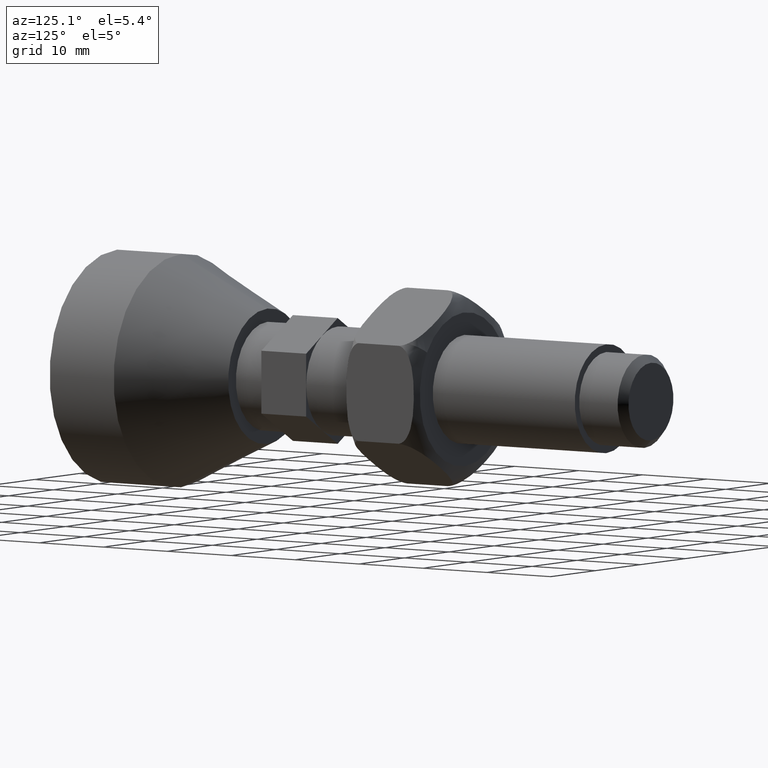
[diagram: clean part render]
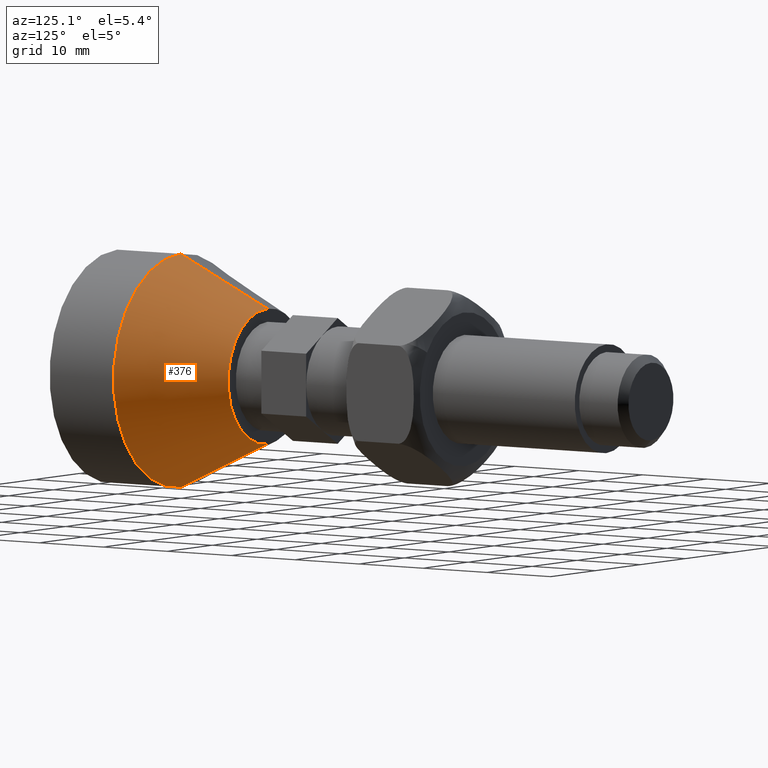
[diagram: same view with one face highlighted and labeled with its STEP entity id]
A machine part, auxiliary view. The second image highlights one B-rep face of the part: STEP entity #376.
In plain terms, the highlighted conical surface has half-angle 25 deg.
Its self-contained STEP definition (entity closure, byte-faithful):
#44 = ORIENTED_EDGE ( 'NONE', *, *, #445, .T. ) ;
#45 = ORIENTED_EDGE ( 'NONE', *, *, #475, .T. ) ;
#97 = LINE ( 'NONE', #1440, #99 ) ;
#99 = VECTOR ( 'NONE', #1237, 1000.000000000000000 ) ;
#117 = CIRCLE ( 'NONE', #1092, 15.00000000000000000 ) ;
#200 = EDGE_LOOP ( 'NONE', ( #390, #398, #44, #45 ) ) ;
#258 = CIRCLE ( 'NONE', #1127, 8.704846614907516800 ) ;
#266 = FACE_OUTER_BOUND ( 'NONE', #200, .T. ) ;
#268 = CONICAL_SURFACE ( 'NONE', #1123, 15.00000000000000000, 0.4363323129985826600 ) ;
#369 = EDGE_CURVE ( 'NONE', #1672, #1755, #258, .T. ) ;
#376 = ADVANCED_FACE ( 'NONE', ( #266 ), #268, .T. ) ;
#390 = ORIENTED_EDGE ( 'NONE', *, *, #460, .F. ) ;
#398 = ORIENTED_EDGE ( 'NONE', *, *, #369, .F. ) ;
#421 = DIRECTION ( 'NONE',  ( -0.0000000000000000000, -1.000000000000000000, -0.0000000000000000000 ) ) ;
#422 = CARTESIAN_POINT ( 'NONE',  ( 0.0000000000000000000, 10.00000000000000000, 0.0000000000000000000 ) ) ;
#423 = DIRECTION ( 'NONE',  ( 0.0000000000000000000, 0.0000000000000000000, 1.000000000000000000 ) ) ;
#445 = EDGE_CURVE ( 'NONE', #1672, #1680, #521, .T. ) ;
#460 = EDGE_CURVE ( 'NONE', #1755, #1683, #97, .T. ) ;
#475 = EDGE_CURVE ( 'NONE', #1680, #1683, #117, .T. ) ;
#521 = LINE ( 'NONE', #1254, #523 ) ;
#523 = VECTOR ( 'NONE', #1398, 1000.000000000000000 ) ;
#566 = CARTESIAN_POINT ( 'NONE',  ( -1.451503226561272900E-015, 23.50000000000000000, -8.704846614907516800 ) ) ;
#601 = CARTESIAN_POINT ( 'NONE',  ( 0.0000000000000000000, 10.00000000000000000, -15.00000000000000000 ) ) ;
#603 = CARTESIAN_POINT ( 'NONE',  ( 1.836970198721029600E-015, 10.00000000000000000, 15.00000000000000000 ) ) ;
#609 = CARTESIAN_POINT ( 'NONE',  ( 0.0000000000000000000, 23.50000000000000000, 8.704846614907516800 ) ) ;
#1092 = AXIS2_PLACEMENT_3D ( 'NONE', #1307, #1218, #1247 ) ;
#1123 = AXIS2_PLACEMENT_3D ( 'NONE', #422, #421, #423 ) ;
#1127 = AXIS2_PLACEMENT_3D ( 'NONE', #1637, #1652, #1604 ) ;
#1218 = DIRECTION ( 'NONE',  ( 0.0000000000000000000, 1.000000000000000000, 0.0000000000000000000 ) ) ;
#1237 = DIRECTION ( 'NONE',  ( -5.175581015019661900E-017, -0.9063077870366498300, -0.4226182617406996600 ) ) ;
#1247 = DIRECTION ( 'NONE',  ( 0.0000000000000000000, 0.0000000000000000000, 1.000000000000000000 ) ) ;
#1254 = CARTESIAN_POINT ( 'NONE',  ( 0.0000000000000000000, 10.00000000000000000, 15.00000000000000000 ) ) ;
#1307 = CARTESIAN_POINT ( 'NONE',  ( 0.0000000000000000000, 10.00000000000000000, 0.0000000000000000000 ) ) ;
#1398 = DIRECTION ( 'NONE',  ( 0.0000000000000000000, -0.9063077870366498300, 0.4226182617406996600 ) ) ;
#1440 = CARTESIAN_POINT ( 'NONE',  ( -1.836970198721029600E-015, 10.00000000000000000, -15.00000000000000000 ) ) ;
#1604 = DIRECTION ( 'NONE',  ( 0.0000000000000000000, 0.0000000000000000000, 1.000000000000000000 ) ) ;
#1637 = CARTESIAN_POINT ( 'NONE',  ( 0.0000000000000000000, 23.50000000000000000, 0.0000000000000000000 ) ) ;
#1652 = DIRECTION ( 'NONE',  ( 0.0000000000000000000, 1.000000000000000000, 0.0000000000000000000 ) ) ;
#1672 = VERTEX_POINT ( 'NONE', #609 ) ;
#1680 = VERTEX_POINT ( 'NONE', #603 ) ;
#1683 = VERTEX_POINT ( 'NONE', #601 ) ;
#1755 = VERTEX_POINT ( 'NONE', #566 ) ;